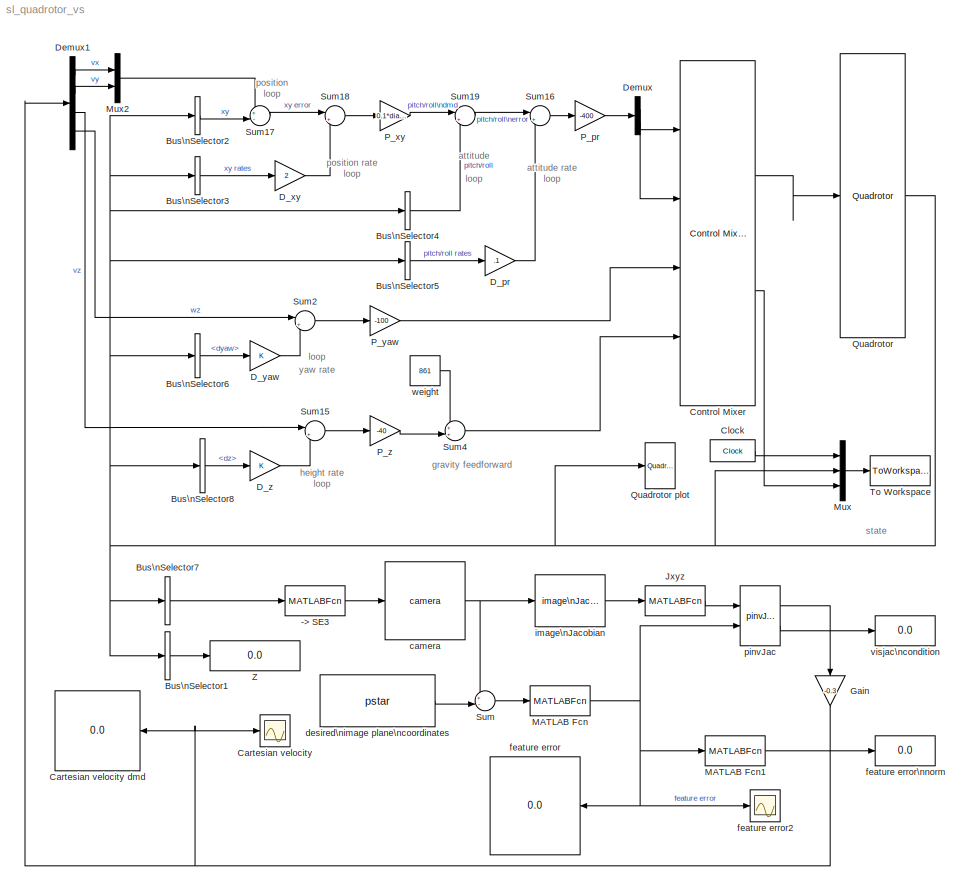
MODEL sl_quadrotor_vs
KIND model
CONFIG InitFcn = fprintf('----- creating workspace variables: camera, quad, P, pstar\\n');\n% create a spherical camera\ncamera = SphericalCamera('name', 'quad-vs');\n\n% create a grid of points on the ground\nP = mkgrid(2, 4);\n\n% set the desired view of these points, defines the final pose\n% of the quad\npstar = camera.project(P, 'Tcam', transl(0, 0, -5)*trotz(pi/2));\n\n% load a dynamic model of the quadrotor...<+15ch>
BLOCK [MATLABFcn] -> SE3
  MATLABFcn = transl(u(1:3))*rpy2tr(u(4:6)')
  Output1D = off
  OutputDimensions = [4 4]
  Ports = [1, 1]
  SID = 162
BLOCK [BusSelector] Bus\nSelector1
  OutputAsBus = on
  OutputSignals = Z
  Ports = [1, 1]
  SID = 172
BLOCK [BusSelector] Bus\nSelector2
  OutputAsBus = on
  OutputSignals = X,Y
  Ports = [1, 1]
  SID = 246
BLOCK [BusSelector] Bus\nSelector3
  OutputAsBus = on
  OutputSignals = dx,dy
  Ports = [1, 1]
  SID = 247
BLOCK [BusSelector] Bus\nSelector4
  OutputAsBus = on
  OutputSignals = pitch,roll
  Ports = [1, 1]
  SID = 248
BLOCK [BusSelector] Bus\nSelector5
  OutputAsBus = on
  OutputSignals = dpitch,droll
  Ports = [1, 1]
  SID = 249
BLOCK [BusSelector] Bus\nSelector6
  OutputSignals = dyaw
  Ports = [1, 1]
  SID = 250
BLOCK [BusSelector] Bus\nSelector7
  OutputAsBus = on
  OutputSignals = X,Y,Z,roll,pitch,yaw
  Ports = [1, 1]
  SID = 161
BLOCK [BusSelector] Bus\nSelector8
  OutputSignals = dz
  Ports = [1, 1]
  SID = 251
BLOCK [Scope] Cartesian velocity
  DataFormat = StructureWithTime
  Floating = off
  NumInputPorts = 1
  Ports = [1]
  SID = 144
  SampleTime = 0
  ShowLegends = off
  TimeRange = 20
  YMax = 1.9
  YMin = -0.4
  ZoomMode = yonly
BLOCK [Display] Cartesian velocity dmd
  Decimation = 1
  Format = short_e
  Ports = [1]
  SID = 145
BLOCK [Clock] Clock
  DisplayTime = on
  SID = 252
BLOCK [Reference] Control Mixer  REF=roblocks/Dynamics/Control Mixer 4  (lib defined in mdl_2a292b13c81b, mdl_69400f8cfe22, +12 more)
  Ports = [4, 2]
  SID = 324
  SourceBlock = roblocks/Dynamics/Control Mixer 4
BLOCK [Gain] D_pr
  Gain = .1
  OutDataTypeStr = Inherit: Inherit via internal rule
  ParamDataTypeStr = Inherit: Inherit via internal rule
  SID = 276
  SaturateOnIntegerOverflow = off
BLOCK [Gain] D_xy
  Gain = 2
  OutDataTypeStr = Inherit: Inherit via internal rule
  ParamDataTypeStr = Inherit: Inherit via internal rule
  SID = 277
  SaturateOnIntegerOverflow = off
BLOCK [Gain] D_yaw
  OutDataTypeStr = Inherit: Inherit via internal rule
  ParamDataTypeStr = Inherit: Inherit via internal rule
  SID = 278
  SaturateOnIntegerOverflow = off
BLOCK [Gain] D_z
  OutDataTypeStr = Inherit: Inherit via internal rule
  ParamDataTypeStr = Inherit: Inherit via internal rule
  SID = 279
  SaturateOnIntegerOverflow = off
BLOCK [Demux] Demux
  DisplayOption = bar
  Outputs = 2
  Ports = [1, 2]
  SID = 280
BLOCK [Demux] Demux1
  DisplayOption = bar
  Ports = [1, 4]
  SID = 165
BLOCK [Gain] Gain
  Gain = -0.3
  OutDataTypeStr = Inherit: Inherit via internal rule
  ParamDataTypeStr = Inherit: Inherit via internal rule
  SID = 169
  SaturateOnIntegerOverflow = off
BLOCK [MATLABFcn] Jxyz
  MATLABFcn = u(:,[1 2 3 6])
  Output1D = off
  Ports = [1, 1]
  SID = 146
BLOCK [MATLABFcn] MATLAB Fcn
  MATLABFcn = angdiff( u(:) )
  Output1D = off
  Ports = [1, 1]
  SID = 147
BLOCK [MATLABFcn] MATLAB Fcn1
  MATLABFcn = norm(u)
  Ports = [1, 1]
  SID = 148
BLOCK [Mux] Mux
  DisplayOption = bar
  Inputs = 3
  Ports = [3, 1]
  SID = 283
BLOCK [Mux] Mux2
  DisplayOption = bar
  Inputs = 2
  Ports = [2, 1]
  SID = 166
BLOCK [Gain] P_pr
  Gain = -400
  OutDataTypeStr = Inherit: Inherit via internal rule
  ParamDataTypeStr = Inherit: Inherit via internal rule
  SID = 285
  SaturateOnIntegerOverflow = off
BLOCK [Gain] P_xy
  Gain = 0.1*diag([-1, 1])
  Multiplication = Matrix(K*u)
  OutDataTypeStr = Inherit: Inherit via internal rule
  ParamDataTypeStr = Inherit: Inherit via internal rule
  SID = 286
  SaturateOnIntegerOverflow = off
BLOCK [Gain] P_yaw
  Gain = -100
  OutDataTypeStr = Inherit: Inherit via internal rule
  ParamDataTypeStr = Inherit: Inherit via internal rule
  SID = 287
  SaturateOnIntegerOverflow = off
BLOCK [Gain] P_z
  Gain = -40
  OutDataTypeStr = Inherit: Inherit via internal rule
  ParamDataTypeStr = Inherit: Inherit via internal rule
  SID = 288
  SaturateOnIntegerOverflow = off
BLOCK [Reference] Quadrotor  REF=roblocks/Dynamics/Quadrotor  (lib defined in mdl_2a292b13c81b, mdl_69400f8cfe22, +12 more)
  Ports = [1, 1]
  SID = 323
  SourceBlock = roblocks/Dynamics/Quadrotor
  quad = quad
BLOCK [Reference] Quadrotor plot  REF=roblocks/Robot Graphics/Quadrotor plot  (lib defined in mdl_2a292b13c81b, mdl_69400f8cfe22, +12 more)
  Ports = [1]
  SID = 326
  SourceBlock = roblocks/Robot Graphics/Quadrotor plot
  quad = quad
  xydim = 2
  zdim = 10
BLOCK [Sum] Sum
  IconShape = round
  Inputs = +-|
  Ports = [2, 1]
  SID = 150
BLOCK [Sum] Sum15
  IconShape = round
  InputSameDT = off
  Inputs = |+-
  OutDataTypeStr = Inherit: Inherit via internal rule
  Ports = [2, 1]
  SID = 307
  SaturateOnIntegerOverflow = off
BLOCK [Sum] Sum16
  IconShape = round
  InputSameDT = off
  Inputs = |+-
  OutDataTypeStr = Inherit: Inherit via internal rule
  Ports = [2, 1]
  SID = 308
  SaturateOnIntegerOverflow = off
BLOCK [Sum] Sum17
  IconShape = round
  InputSameDT = off
  Inputs = +-|
  OutDataTypeStr = Inherit: Inherit via internal rule
  Ports = [2, 1]
  SID = 309
  SaturateOnIntegerOverflow = off
BLOCK [Sum] Sum18
  IconShape = round
  InputSameDT = off
  Inputs = |+-
  OutDataTypeStr = Inherit: Inherit via internal rule
  Ports = [2, 1]
  SID = 310
  SaturateOnIntegerOverflow = off
BLOCK [Sum] Sum19
  IconShape = round
  InputSameDT = off
  Inputs = |+-
  OutDataTypeStr = Inherit: Inherit via internal rule
  Ports = [2, 1]
  SID = 311
  SaturateOnIntegerOverflow = off
BLOCK [Sum] Sum2
  IconShape = round
  InputSameDT = off
  Inputs = |+-
  OutDataTypeStr = Inherit: Inherit via internal rule
  Ports = [2, 1]
  SID = 312
  SaturateOnIntegerOverflow = off
BLOCK [Sum] Sum4
  IconShape = round
  InputSameDT = off
  Inputs = ++|
  OutDataTypeStr = Inherit: Inherit via internal rule
  Ports = [2, 1]
  SID = 314
  SaturateOnIntegerOverflow = off
BLOCK [ToWorkspace] To Workspace
  MaxDataPoints = inf
  Ports = [1]
  SID = 315
  SampleTime = -1
  VariableName = quad
BLOCK [Display] Z
  Decimation = 1
  Ports = [1]
  SID = 171
BLOCK [Reference] camera  REF=roblocks/Vision/camera  (lib defined in mdl_2a292b13c81b, mdl_69400f8cfe22, +12 more)
  Ports = [1, 1]
  SID = 151
  SourceBlock = roblocks/Vision/camera
  cam = camera
  points = P
BLOCK [Constant] desired\nimage plane\ncoordinates
  SID = 152
  Value = pstar
  VectorParams1D = off
BLOCK [Display] feature error
  Decimation = 1
  Format = bank
  Ports = [1]
  SID = 153
BLOCK [Scope] feature error2
  DataFormat = StructureWithTime
  Floating = off
  NumInputPorts = 1
  Ports = [1]
  SID = 155
  SampleTime = 0
  SaveName = ScopeData1
  ShowLegends = off
  TimeRange = 20
  YMax = 150
  YMin = -150
  ZoomMode = yonly
BLOCK [Display] feature error\nnorm
  Decimation = 1
  Ports = [1]
  SID = 154
BLOCK [Reference] image\nJacobian  REF=roblocks/Vision/image\nJacobian  (lib defined in mdl_2a292b13c81b, mdl_69400f8cfe22, +12 more)
  Ports = [1, 1]
  SID = 327
  SourceBlock = roblocks/Vision/image\nJacobian
  cam = camera
  z = 1
BLOCK [Reference] pinvJac  REF=roblocks/Vision/pinvJac  (lib defined in mdl_2a292b13c81b, mdl_69400f8cfe22, +12 more)
  Ports = [2, 2]
  SID = 328
  SourceBlock = roblocks/Vision/pinvJac
BLOCK [Display] visjac\ncondition
  Decimation = 1
  Ports = [1]
  SID = 157
BLOCK [Constant] weight
  SID = 317
  SampleTime = 0
  Value = 861
ANNOTATION (root): attitude rate\nloop
ANNOTATION (root): attitude\nloop
ANNOTATION (root): gravity feedforward
ANNOTATION (root): height rate\nloop
ANNOTATION (root): position rate\nloop
ANNOTATION (root): position\nloop
ANNOTATION (root): state
ANNOTATION (root): yaw rate\nloop
LINE -> SE3:1 -> camera:1
LINE Bus\nSelector1:1 -> Z:1
LINE Bus\nSelector2:1 -> Sum17:2
LINE Bus\nSelector3:1 -> D_xy:1
LINE Bus\nSelector4:1 -> Sum19:2
LINE Bus\nSelector5:1 -> D_pr:1
LINE Bus\nSelector6:1 -> D_yaw:1
LINE Bus\nSelector7:1 -> -> SE3:1
LINE Bus\nSelector8:1 -> D_z:1
LINE Clock:1 -> Mux:1
LINE Control Mixer:1 -> Quadrotor:1
LINE Control Mixer:2 -> Mux:3
LINE D_pr:1 -> Sum16:2
LINE D_xy:1 -> Sum18:2
LINE D_yaw:1 -> Sum2:2
LINE D_z:1 -> Sum15:2
LINE Demux1:1 -> Mux2:1
LINE Demux1:2 -> Mux2:2
LINE Demux1:3 -> Sum15:1
LINE Demux1:4 -> Sum2:1
LINE Demux:1 -> Control Mixer:1
LINE Demux:2 -> Control Mixer:2
NET Gain:1 -> Cartesian velocity dmd:1, Cartesian velocity:1, Demux1:1
LINE Jxyz:1 -> pinvJac:1
LINE MATLAB Fcn1:1 -> feature error\nnorm:1
NET MATLAB Fcn:1 -> MATLAB Fcn1:1, feature error2:1, feature error:1, pinvJac:2
LINE Mux2:1 -> Sum17:1
LINE Mux:1 -> To Workspace:1
LINE P_pr:1 -> Demux:1
LINE P_xy:1 -> Sum19:1
LINE P_yaw:1 -> Control Mixer:3
LINE P_z:1 -> Sum4:2
NET Quadrotor:1 -> Bus\nSelector1:1, Bus\nSelector2:1, Bus\nSelector3:1, Bus\nSelector4:1, Bus\nSelector5:1, Bus\nSelector6:1, Bus\nSelector7:1, Bus\nSelector8:1, Mux:2, Quadrotor plot:1
LINE Sum15:1 -> P_z:1
LINE Sum16:1 -> P_pr:1
LINE Sum17:1 -> Sum18:1
LINE Sum18:1 -> P_xy:1
LINE Sum19:1 -> Sum16:1
LINE Sum2:1 -> P_yaw:1
LINE Sum4:1 -> Control Mixer:4
LINE Sum:1 -> MATLAB Fcn:1
NET camera:1 -> Sum:1, image\nJacobian:1
LINE desired\nimage plane\ncoordinates:1 -> Sum:2
LINE image\nJacobian:1 -> Jxyz:1
LINE pinvJac:1 -> Gain:1
LINE pinvJac:2 -> visjac\ncondition:1
LINE weight:1 -> Sum4:1
note: NET lines group one-source signal fan-out (src -> all destinations, sorted); 1:1 wires keep LINE
